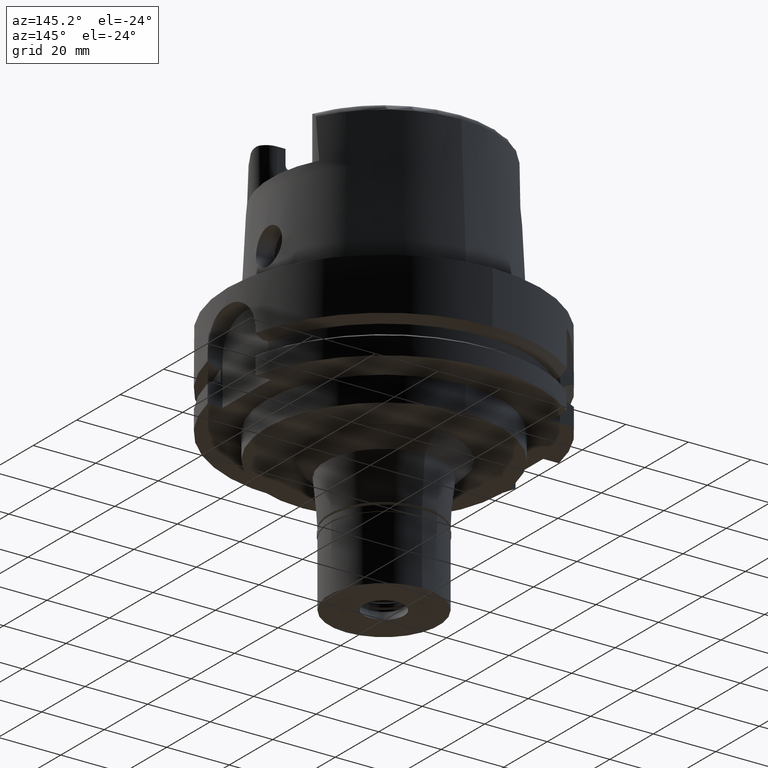
[diagram: clean part render]
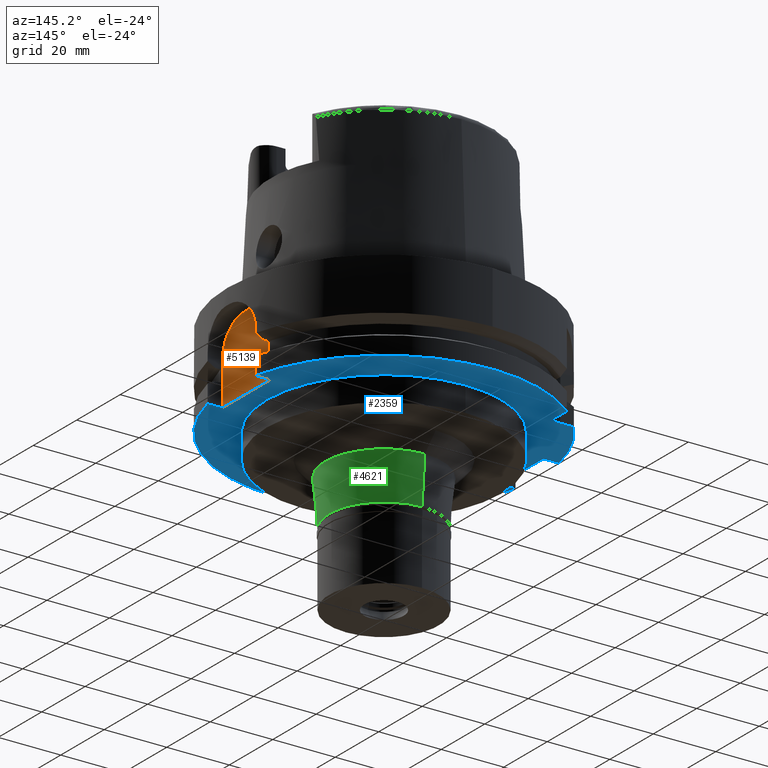
[diagram: same view with three faces highlighted in distinct colors, each labeled with its STEP entity id]
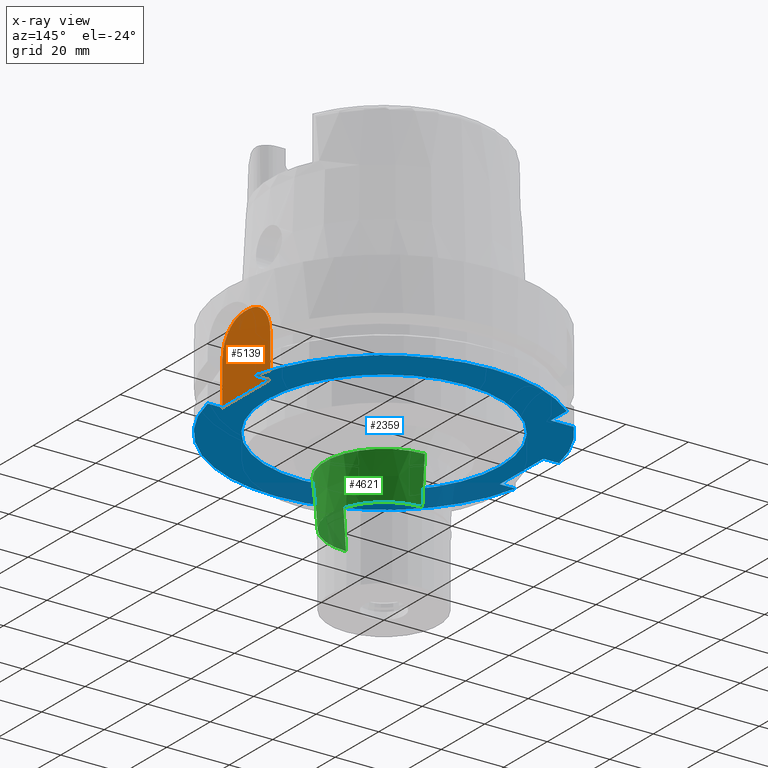
[diagram: x-ray of the same camera — body ghosted, the three highlighted faces saturated]
A machine part, auxiliary view with three faces highlighted in distinct colors.
The next image is the same camera in x-ray (body ghosted, the three faces saturated) — at least one of them is partly hidden behind the body in this view.
Their STEP definitions:

[orange] entity #5139 — the highlighted planar face has unit normal (1, 0, 0).
#36 = VECTOR ( 'NONE', #3092, 1000.000000000000000 ) ;
#54 = EDGE_CURVE ( 'NONE', #3079, #5112, #3845, .T. ) ;
#123 = CARTESIAN_POINT ( 'NONE',  ( 44.00000000000000000, -11.00000000000000000, -29.00000000000000000 ) ) ;
#212 = LINE ( 'NONE', #1936, #36 ) ;
#217 = ORIENTED_EDGE ( 'NONE', *, *, #54, .F. ) ;
#275 = ORIENTED_EDGE ( 'NONE', *, *, #3755, .F. ) ;
#597 = CARTESIAN_POINT ( 'NONE',  ( 44.00000000000000000, 1.000000000000000000, -5.000000000000000000 ) ) ;
#955 = VECTOR ( 'NONE', #2100, 1000.000000000000000 ) ;
#1057 = PLANE ( 'NONE',  #5288 ) ;
#1201 = VERTEX_POINT ( 'NONE', #5506 ) ;
#1397 = DIRECTION ( 'NONE',  ( -1.000000000000000000, 0.0000000000000000000, 0.0000000000000000000 ) ) ;
#1425 = CARTESIAN_POINT ( 'NONE',  ( 44.00000000000000000, 1.000000000000000000, -15.00000000000000000 ) ) ;
#1479 = CARTESIAN_POINT ( 'NONE',  ( 44.00000000000000000, 0.0000000000000000000, 0.0000000000000000000 ) ) ;
#1618 = EDGE_CURVE ( 'NONE', #2381, #3079, #4107, .T. ) ;
#1660 = EDGE_CURVE ( 'NONE', #2819, #1201, #3589, .T. ) ;
#1734 = ORIENTED_EDGE ( 'NONE', *, *, #1660, .F. ) ;
#1881 = DIRECTION ( 'NONE',  ( 0.0000000000000000000, -1.000000000000000000, 0.0000000000000000000 ) ) ;
#1936 = CARTESIAN_POINT ( 'NONE',  ( 44.00000000000000000, -1.000000000000000000, -5.000000000000000000 ) ) ;
#2100 = DIRECTION ( 'NONE',  ( 0.0000000000000000000, 0.0000000000000000000, 1.000000000000000000 ) ) ;
#2170 = ORIENTED_EDGE ( 'NONE', *, *, #3368, .F. ) ;
#2210 = LINE ( 'NONE', #5266, #3731 ) ;
#2381 = VERTEX_POINT ( 'NONE', #597 ) ;
#2620 = LINE ( 'NONE', #4355, #955 ) ;
#2680 = DIRECTION ( 'NONE',  ( 1.000000000000000000, 0.0000000000000000000, 0.0000000000000000000 ) ) ;
#2819 = VERTEX_POINT ( 'NONE', #4060 ) ;
#3079 = VERTEX_POINT ( 'NONE', #4874 ) ;
#3092 = DIRECTION ( 'NONE',  ( 0.0000000000000000000, 1.000000000000000000, 0.0000000000000000000 ) ) ;
#3171 = DIRECTION ( 'NONE',  ( 0.0000000000000000000, -1.000000000000000000, 0.0000000000000000000 ) ) ;
#3368 = EDGE_CURVE ( 'NONE', #1201, #2381, #212, .T. ) ;
#3585 = VECTOR ( 'NONE', #4729, 1000.000000000000000 ) ;
#3589 = CIRCLE ( 'NONE', #4569, 9.999999999999998224 ) ;
#3592 = ORIENTED_EDGE ( 'NONE', *, *, #1618, .F. ) ;
#3648 = FACE_OUTER_BOUND ( 'NONE', #3790, .T. ) ;
#3731 = VECTOR ( 'NONE', #3171, 1000.000000000000000 ) ;
#3755 = EDGE_CURVE ( 'NONE', #5112, #5179, #2210, .T. ) ;
#3790 = EDGE_LOOP ( 'NONE', ( #217, #3592, #2170, #1734, #4585, #275 ) ) ;
#3826 = CARTESIAN_POINT ( 'NONE',  ( 44.00000000000000000, 11.00000000000000000, -29.00000000000000000 ) ) ;
#3845 = LINE ( 'NONE', #5582, #3585 ) ;
#4060 = CARTESIAN_POINT ( 'NONE',  ( 44.00000000000000000, -11.00000000000000000, -15.00000000000000000 ) ) ;
#4107 = CIRCLE ( 'NONE', #5482, 10.00000000000000000 ) ;
#4355 = CARTESIAN_POINT ( 'NONE',  ( 44.00000000000000000, -11.00000000000000000, -29.00000000000000000 ) ) ;
#4569 = AXIS2_PLACEMENT_3D ( 'NONE', #5295, #4886, #1881 ) ;
#4585 = ORIENTED_EDGE ( 'NONE', *, *, #5110, .F. ) ;
#4729 = DIRECTION ( 'NONE',  ( 0.0000000000000000000, 0.0000000000000000000, -1.000000000000000000 ) ) ;
#4855 = DIRECTION ( 'NONE',  ( 0.0000000000000000000, 0.0000000000000000000, 1.000000000000000000 ) ) ;
#4874 = CARTESIAN_POINT ( 'NONE',  ( 44.00000000000000000, 11.00000000000000000, -15.00000000000000000 ) ) ;
#4886 = DIRECTION ( 'NONE',  ( -1.000000000000000000, 0.0000000000000000000, 0.0000000000000000000 ) ) ;
#5110 = EDGE_CURVE ( 'NONE', #5179, #2819, #2620, .T. ) ;
#5112 = VERTEX_POINT ( 'NONE', #3826 ) ;
#5139 = ADVANCED_FACE ( 'NONE', ( #3648 ), #1057, .T. ) ;
#5179 = VERTEX_POINT ( 'NONE', #123 ) ;
#5266 = CARTESIAN_POINT ( 'NONE',  ( 44.00000000000000000, 11.00000000000000000, -29.00000000000000000 ) ) ;
#5288 = AXIS2_PLACEMENT_3D ( 'NONE', #1479, #2680, #5300 ) ;
#5295 = CARTESIAN_POINT ( 'NONE',  ( 44.00000000000000000, -1.000000000000000000, -15.00000000000000000 ) ) ;
#5300 = DIRECTION ( 'NONE',  ( 0.0000000000000000000, 1.000000000000000000, 0.0000000000000000000 ) ) ;
#5482 = AXIS2_PLACEMENT_3D ( 'NONE', #1425, #1397, #4855 ) ;
#5506 = CARTESIAN_POINT ( 'NONE',  ( 44.00000000000000000, -1.000000000000000000, -5.000000000000000000 ) ) ;
#5582 = CARTESIAN_POINT ( 'NONE',  ( 44.00000000000000000, 11.00000000000000000, -15.00000000000000000 ) ) ;

[blue] entity #2359 — the highlighted planar face has unit normal (0, 0, 1).
#35 = LINE ( 'NONE', #4303, #2905 ) ;
#58 = AXIS2_PLACEMENT_3D ( 'NONE', #1908, #4438, #4067 ) ;
#123 = CARTESIAN_POINT ( 'NONE',  ( 44.00000000000000000, -11.00000000000000000, -29.00000000000000000 ) ) ;
#146 = CIRCLE ( 'NONE', #2300, 50.00000000000000711 ) ;
#188 = EDGE_CURVE ( 'NONE', #2151, #3556, #3296, .T. ) ;
#207 = DIRECTION ( 'NONE',  ( 0.0000000000000000000, 1.000000000000000000, 0.0000000000000000000 ) ) ;
#312 = CARTESIAN_POINT ( 'NONE',  ( 0.0000000000000000000, -37.50000000000000000, -29.00000000000000000 ) ) ;
#328 = ORIENTED_EDGE ( 'NONE', *, *, #5481, .F. ) ;
#377 = CARTESIAN_POINT ( 'NONE',  ( 48.77499359303000404, 11.00000000000000000, -29.00000000000000000 ) ) ;
#437 = VERTEX_POINT ( 'NONE', #5414 ) ;
#481 = EDGE_CURVE ( 'NONE', #2612, #3815, #3195, .T. ) ;
#587 = EDGE_CURVE ( 'NONE', #5090, #437, #3766, .T. ) ;
#635 = CARTESIAN_POINT ( 'NONE',  ( 0.0000000000000000000, 0.0000000000000000000, -29.00000000000000000 ) ) ;
#707 = FACE_OUTER_BOUND ( 'NONE', #3749, .T. ) ;
#711 = VERTEX_POINT ( 'NONE', #377 ) ;
#740 = DIRECTION ( 'NONE',  ( 0.0000000000000000000, 0.0000000000000000000, -1.000000000000000000 ) ) ;
#846 = CIRCLE ( 'NONE', #2017, 37.50000000000000000 ) ;
#866 = CIRCLE ( 'NONE', #4019, 50.00000000000000000 ) ;
#1025 = FACE_BOUND ( 'NONE', #5596, .T. ) ;
#1046 = VECTOR ( 'NONE', #5385, 1000.000000000000000 ) ;
#1078 = ORIENTED_EDGE ( 'NONE', *, *, #5205, .F. ) ;
#1092 = ORIENTED_EDGE ( 'NONE', *, *, #5278, .F. ) ;
#1159 = ORIENTED_EDGE ( 'NONE', *, *, #3671, .F. ) ;
#1163 = CARTESIAN_POINT ( 'NONE',  ( 0.0000000000000000000, 0.0000000000000000000, -29.00000000000000000 ) ) ;
#1168 = DIRECTION ( 'NONE',  ( 0.0000000000000000000, -1.000000000000000000, 0.0000000000000000000 ) ) ;
#1213 = VECTOR ( 'NONE', #1877, 1000.000000000000000 ) ;
#1253 = DIRECTION ( 'NONE',  ( 0.0000000000000000000, 1.000000000000000000, 0.0000000000000000000 ) ) ;
#1352 = CARTESIAN_POINT ( 'NONE',  ( 44.00000000000000000, -11.00000000000000000, -29.00000000000000000 ) ) ;
#1448 = LINE ( 'NONE', #3569, #1213 ) ;
#1457 = CARTESIAN_POINT ( 'NONE',  ( -31.50000000000000000, 38.82975663071000128, -29.00000000000000000 ) ) ;
#1528 = DIRECTION ( 'NONE',  ( 0.0000000000000000000, 0.0000000000000000000, 1.000000000000000000 ) ) ;
#1585 = CIRCLE ( 'NONE', #58, 50.00000000000000000 ) ;
#1703 = DIRECTION ( 'NONE',  ( 0.0000000000000000000, 0.0000000000000000000, 1.000000000000000000 ) ) ;
#1748 = CARTESIAN_POINT ( 'NONE',  ( -48.98979485565999425, -10.00000000000000000, -29.00000000000000000 ) ) ;
#1778 = VECTOR ( 'NONE', #4700, 1000.000000000000000 ) ;
#1877 = DIRECTION ( 'NONE',  ( 0.0000000000000000000, 1.000000000000000000, 0.0000000000000000000 ) ) ;
#1908 = CARTESIAN_POINT ( 'NONE',  ( 0.0000000000000000000, 0.0000000000000000000, -29.00000000000000000 ) ) ;
#1943 = VERTEX_POINT ( 'NONE', #4913 ) ;
#1947 = DIRECTION ( 'NONE',  ( 1.000000000000000000, -1.785659532940000023E-14, 0.0000000000000000000 ) ) ;
#1977 = DIRECTION ( 'NONE',  ( 1.000000000000000000, 0.0000000000000000000, 0.0000000000000000000 ) ) ;
#2017 = AXIS2_PLACEMENT_3D ( 'NONE', #1163, #740, #1253 ) ;
#2028 = CARTESIAN_POINT ( 'NONE',  ( -31.50000000000000000, 31.50000000000000000, -29.00000000000000000 ) ) ;
#2094 = DIRECTION ( 'NONE',  ( -1.000000000000000000, -4.627973610177000155E-14, 0.0000000000000000000 ) ) ;
#2136 = AXIS2_PLACEMENT_3D ( 'NONE', #2480, #2168, #1168 ) ;
#2151 = VERTEX_POINT ( 'NONE', #312 ) ;
#2168 = DIRECTION ( 'NONE',  ( 0.0000000000000000000, 0.0000000000000000000, -1.000000000000000000 ) ) ;
#2202 = ORIENTED_EDGE ( 'NONE', *, *, #188, .F. ) ;
#2210 = LINE ( 'NONE', #5266, #3731 ) ;
#2300 = AXIS2_PLACEMENT_3D ( 'NONE', #5171, #1703, #4316 ) ;
#2359 = ADVANCED_FACE ( 'NONE', ( #707, #1025 ), #4457, .F. ) ;
#2411 = CARTESIAN_POINT ( 'NONE',  ( -38.82975663071000128, 31.50000000000000000, -29.00000000000000000 ) ) ;
#2440 = ORIENTED_EDGE ( 'NONE', *, *, #3176, .F. ) ;
#2480 = CARTESIAN_POINT ( 'NONE',  ( 0.0000000000000000000, 0.0000000000000000000, -29.00000000000000000 ) ) ;
#2553 = VECTOR ( 'NONE', #1947, 1000.000000000000000 ) ;
#2561 = LINE ( 'NONE', #4702, #3641 ) ;
#2597 = DIRECTION ( 'NONE',  ( -1.000000000000000000, -4.798503851105999980E-14, 0.0000000000000000000 ) ) ;
#2610 = ORIENTED_EDGE ( 'NONE', *, *, #3136, .F. ) ;
#2612 = VERTEX_POINT ( 'NONE', #2028 ) ;
#2879 = VERTEX_POINT ( 'NONE', #2411 ) ;
#2904 = ORIENTED_EDGE ( 'NONE', *, *, #3755, .T. ) ;
#2905 = VECTOR ( 'NONE', #2597, 1000.000000000000000 ) ;
#2948 = LINE ( 'NONE', #3718, #2553 ) ;
#3045 = ORIENTED_EDGE ( 'NONE', *, *, #481, .T. ) ;
#3060 = DIRECTION ( 'NONE',  ( 1.000000000000000000, 1.711257052401000108E-14, 0.0000000000000000000 ) ) ;
#3136 = EDGE_CURVE ( 'NONE', #3556, #2151, #846, .T. ) ;
#3171 = DIRECTION ( 'NONE',  ( 0.0000000000000000000, -1.000000000000000000, 0.0000000000000000000 ) ) ;
#3176 = EDGE_CURVE ( 'NONE', #4427, #5054, #2561, .T. ) ;
#3195 = LINE ( 'NONE', #3246, #1046 ) ;
#3246 = CARTESIAN_POINT ( 'NONE',  ( -31.50000000000000000, 31.50000000000000000, -29.00000000000000000 ) ) ;
#3296 = CIRCLE ( 'NONE', #2136, 37.50000000000000000 ) ;
#3324 = ORIENTED_EDGE ( 'NONE', *, *, #587, .T. ) ;
#3556 = VERTEX_POINT ( 'NONE', #5049 ) ;
#3569 = CARTESIAN_POINT ( 'NONE',  ( -44.00000000000000000, -10.00000000000000000, -29.00000000000000000 ) ) ;
#3577 = DIRECTION ( 'NONE',  ( 0.0000000000000000000, 0.0000000000000000000, 1.000000000000000000 ) ) ;
#3641 = VECTOR ( 'NONE', #2094, 1000.000000000000000 ) ;
#3671 = EDGE_CURVE ( 'NONE', #2612, #2879, #35, .T. ) ;
#3718 = CARTESIAN_POINT ( 'NONE',  ( 44.00000000000000000, 11.00000000000000000, -29.00000000000000000 ) ) ;
#3724 = ORIENTED_EDGE ( 'NONE', *, *, #4440, .T. ) ;
#3727 = CARTESIAN_POINT ( 'NONE',  ( -44.00000000000000000, 10.00000000000000000, -29.00000000000000000 ) ) ;
#3731 = VECTOR ( 'NONE', #3171, 1000.000000000000000 ) ;
#3746 = EDGE_CURVE ( 'NONE', #5179, #1943, #5556, .T. ) ;
#3749 = EDGE_LOOP ( 'NONE', ( #1078, #3793, #2904, #3830, #1092, #2440, #3724, #3324, #328, #1159, #3045 ) ) ;
#3755 = EDGE_CURVE ( 'NONE', #5112, #5179, #2210, .T. ) ;
#3766 = LINE ( 'NONE', #3727, #1778 ) ;
#3793 = ORIENTED_EDGE ( 'NONE', *, *, #4528, .F. ) ;
#3815 = VERTEX_POINT ( 'NONE', #1457 ) ;
#3826 = CARTESIAN_POINT ( 'NONE',  ( 44.00000000000000000, 11.00000000000000000, -29.00000000000000000 ) ) ;
#3830 = ORIENTED_EDGE ( 'NONE', *, *, #3746, .T. ) ;
#4019 = AXIS2_PLACEMENT_3D ( 'NONE', #635, #3577, #207 ) ;
#4067 = DIRECTION ( 'NONE',  ( 0.0000000000000000000, -1.000000000000000000, 0.0000000000000000000 ) ) ;
#4303 = CARTESIAN_POINT ( 'NONE',  ( -31.50000000000000000, 31.50000000000000000, -29.00000000000000000 ) ) ;
#4310 = AXIS2_PLACEMENT_3D ( 'NONE', #5406, #1528, #1977 ) ;
#4316 = DIRECTION ( 'NONE',  ( -0.7765951326141738997, 0.6299999999999789102, 0.0000000000000000000 ) ) ;
#4427 = VERTEX_POINT ( 'NONE', #4794 ) ;
#4438 = DIRECTION ( 'NONE',  ( 0.0000000000000000000, 0.0000000000000000000, 1.000000000000000000 ) ) ;
#4440 = EDGE_CURVE ( 'NONE', #4427, #5090, #1448, .T. ) ;
#4457 = PLANE ( 'NONE',  #4310 ) ;
#4528 = EDGE_CURVE ( 'NONE', #5112, #711, #2948, .T. ) ;
#4700 = DIRECTION ( 'NONE',  ( -1.000000000000000000, 4.627973610177000155E-14, 0.0000000000000000000 ) ) ;
#4702 = CARTESIAN_POINT ( 'NONE',  ( -44.00000000000000000, -10.00000000000000000, -29.00000000000000000 ) ) ;
#4794 = CARTESIAN_POINT ( 'NONE',  ( -44.00000000000000000, -10.00000000000000000, -29.00000000000000000 ) ) ;
#4802 = CARTESIAN_POINT ( 'NONE',  ( -44.00000000000000000, 10.00000000000000000, -29.00000000000000000 ) ) ;
#4913 = CARTESIAN_POINT ( 'NONE',  ( 48.77499359303000404, -11.00000000000000000, -29.00000000000000000 ) ) ;
#5049 = CARTESIAN_POINT ( 'NONE',  ( 0.0000000000000000000, 37.50000000000000000, -29.00000000000000000 ) ) ;
#5054 = VERTEX_POINT ( 'NONE', #1748 ) ;
#5090 = VERTEX_POINT ( 'NONE', #4802 ) ;
#5112 = VERTEX_POINT ( 'NONE', #3826 ) ;
#5171 = CARTESIAN_POINT ( 'NONE',  ( 0.0000000000000000000, 0.0000000000000000000, -29.00000000000000000 ) ) ;
#5179 = VERTEX_POINT ( 'NONE', #123 ) ;
#5205 = EDGE_CURVE ( 'NONE', #711, #3815, #866, .T. ) ;
#5266 = CARTESIAN_POINT ( 'NONE',  ( 44.00000000000000000, 11.00000000000000000, -29.00000000000000000 ) ) ;
#5278 = EDGE_CURVE ( 'NONE', #5054, #1943, #1585, .T. ) ;
#5385 = DIRECTION ( 'NONE',  ( 4.798503851105999980E-14, 1.000000000000000000, 0.0000000000000000000 ) ) ;
#5406 = CARTESIAN_POINT ( 'NONE',  ( 0.0000000000000000000, 0.0000000000000000000, -29.00000000000000000 ) ) ;
#5414 = CARTESIAN_POINT ( 'NONE',  ( -48.98979485565999425, 10.00000000000000000, -29.00000000000000000 ) ) ;
#5455 = VECTOR ( 'NONE', #3060, 1000.000000000000000 ) ;
#5481 = EDGE_CURVE ( 'NONE', #2879, #437, #146, .T. ) ;
#5556 = LINE ( 'NONE', #1352, #5455 ) ;
#5596 = EDGE_LOOP ( 'NONE', ( #2610, #2202 ) ) ;

[green] entity #4621 — the highlighted conical surface has half-angle 5 deg.
#102 = EDGE_CURVE ( 'NONE', #194, #3511, #5026, .T. ) ;
#194 = VERTEX_POINT ( 'NONE', #2872 ) ;
#374 = CARTESIAN_POINT ( 'NONE',  ( 0.0000000000000000000, -18.78608335382999783, -42.00000000000000000 ) ) ;
#386 = DIRECTION ( 'NONE',  ( 0.0000000000000000000, -1.000000000000000000, 0.0000000000000000000 ) ) ;
#667 = AXIS2_PLACEMENT_3D ( 'NONE', #1082, #2779, #2439 ) ;
#750 = ORIENTED_EDGE ( 'NONE', *, *, #102, .T. ) ;
#1082 = CARTESIAN_POINT ( 'NONE',  ( 0.0000000000000000000, 0.0000000000000000000, -42.00000000000000000 ) ) ;
#1232 = AXIS2_PLACEMENT_3D ( 'NONE', #4244, #2078, #386 ) ;
#1584 = VECTOR ( 'NONE', #2317, 1000.000000000000000 ) ;
#1685 = ORIENTED_EDGE ( 'NONE', *, *, #5218, .F. ) ;
#1769 = CIRCLE ( 'NONE', #667, 18.78608335384000227 ) ;
#2078 = DIRECTION ( 'NONE',  ( 0.0000000000000000000, 0.0000000000000000000, 1.000000000000000000 ) ) ;
#2248 = DIRECTION ( 'NONE',  ( 0.0000000000000000000, 1.000000000000000000, 0.0000000000000000000 ) ) ;
#2317 = DIRECTION ( 'NONE',  ( 0.0000000000000000000, -0.08715574274756596185, -0.9961946980917535388 ) ) ;
#2439 = DIRECTION ( 'NONE',  ( 0.0000000000000000000, -1.000000000000000000, 0.0000000000000000000 ) ) ;
#2598 = CARTESIAN_POINT ( 'NONE',  ( 0.0000000000000000000, -18.78608335382999783, -42.00000000000000000 ) ) ;
#2779 = DIRECTION ( 'NONE',  ( 0.0000000000000000000, 0.0000000000000000000, 1.000000000000000000 ) ) ;
#2872 = CARTESIAN_POINT ( 'NONE',  ( 0.0000000000000000000, -17.50000000000000000, -56.70000000000000284 ) ) ;
#2908 = EDGE_LOOP ( 'NONE', ( #3822, #3098, #750, #1685 ) ) ;
#3061 = DIRECTION ( 'NONE',  ( 0.0000000000000000000, 0.08715574274756596185, -0.9961946980917535388 ) ) ;
#3098 = ORIENTED_EDGE ( 'NONE', *, *, #4978, .T. ) ;
#3150 = CARTESIAN_POINT ( 'NONE',  ( 0.0000000000000000000, 18.78608335382999783, -42.00000000000000000 ) ) ;
#3408 = LINE ( 'NONE', #2598, #3657 ) ;
#3468 = FACE_OUTER_BOUND ( 'NONE', #2908, .T. ) ;
#3511 = VERTEX_POINT ( 'NONE', #3773 ) ;
#3657 = VECTOR ( 'NONE', #3061, 1000.000000000000000 ) ;
#3743 = AXIS2_PLACEMENT_3D ( 'NONE', #5599, #4362, #2248 ) ;
#3773 = CARTESIAN_POINT ( 'NONE',  ( 0.0000000000000000000, 17.50000000000000000, -56.70000000000000284 ) ) ;
#3822 = ORIENTED_EDGE ( 'NONE', *, *, #4078, .F. ) ;
#3837 = CARTESIAN_POINT ( 'NONE',  ( 0.0000000000000000000, 18.78608335382999783, -42.00000000000000000 ) ) ;
#4078 = EDGE_CURVE ( 'NONE', #4344, #5421, #1769, .T. ) ;
#4244 = CARTESIAN_POINT ( 'NONE',  ( 0.0000000000000000000, 0.0000000000000000000, -56.70000000000000284 ) ) ;
#4278 = CONICAL_SURFACE ( 'NONE', #3743, 18.14304167691999936, 0.08726646259969973729 ) ;
#4344 = VERTEX_POINT ( 'NONE', #374 ) ;
#4362 = DIRECTION ( 'NONE',  ( 0.0000000000000000000, 0.0000000000000000000, 1.000000000000000000 ) ) ;
#4621 = ADVANCED_FACE ( 'NONE', ( #3468 ), #4278, .T. ) ;
#4912 = LINE ( 'NONE', #3150, #1584 ) ;
#4978 = EDGE_CURVE ( 'NONE', #4344, #194, #3408, .T. ) ;
#5026 = CIRCLE ( 'NONE', #1232, 17.50000000000000000 ) ;
#5218 = EDGE_CURVE ( 'NONE', #5421, #3511, #4912, .T. ) ;
#5421 = VERTEX_POINT ( 'NONE', #3837 ) ;
#5599 = CARTESIAN_POINT ( 'NONE',  ( 0.0000000000000000000, 0.0000000000000000000, -49.35000000000000142 ) ) ;